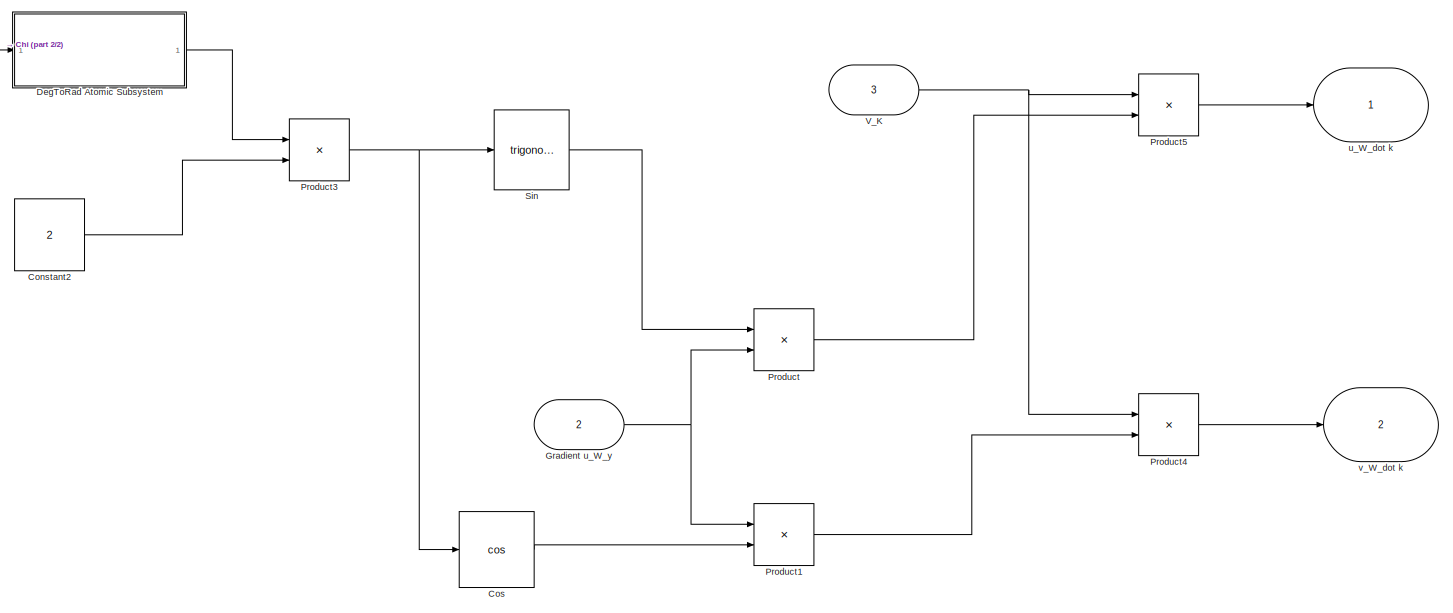
[diagram: root canvas - part 1/2, most of the canvas]
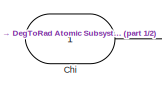
[diagram: root canvas - part 2/2, top left region]
MODEL slx_45766011ba7b
KIND model
CONFIG AbsTol = auto
CONFIG EnableMultiTasking = off
CONFIG FixedStep = auto
CONFIG MaxStep = auto
CONFIG MinStep = auto
CONFIG RelTol = 1e-3
CONFIG SampleTimeConstraint = Unconstrained
CONFIG SolverName = VariableStepAuto
CONFIG StartTime = 0.0
CONFIG StopTime = 10.0
BLOCK [Inport] Chi
BLOCK [Constant] Constant2
  Value = 2
BLOCK [Trigonometry] Cos
  Operator = cos
  Ports = [1, 1]
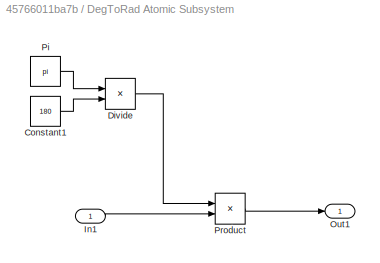
BLOCK [SubSystem] DegToRad Atomic Subsystem
  Ports = [1, 1]
  RequestExecContextInheritance = off
  TreatAsAtomicUnit = on
BLOCK [Constant] DegToRad Atomic Subsystem/Constant1
  Value = 180
BLOCK [Product] DegToRad Atomic Subsystem/Divide
  Inputs = */
  Ports = [2, 1]
BLOCK [Inport] DegToRad Atomic Subsystem/In1
BLOCK [Outport] DegToRad Atomic Subsystem/Out1
BLOCK [Constant] DegToRad Atomic Subsystem/Pi
  OutDataTypeStr = Inherit: Inherit via back propagation
  Value = pi
BLOCK [Product] DegToRad Atomic Subsystem/Product
  Ports = [2, 1]
BLOCK [Inport] Gradient u_W_y
  Port = 2
BLOCK [Product] Product
  Ports = [2, 1]
BLOCK [Product] Product1
  Ports = [2, 1]
BLOCK [Product] Product3
  Ports = [2, 1]
BLOCK [Product] Product4
  Ports = [2, 1]
BLOCK [Product] Product5
  Ports = [2, 1]
BLOCK [Trigonometry] Sin
  Ports = [1, 1]
BLOCK [Inport] V_K
  Port = 3
BLOCK [Outport] u_W_dot k
BLOCK [Outport] v_W_dot k
  Port = 2
LINE Chi:1 -> DegToRad Atomic Subsystem:1
LINE Constant2:1 -> Product3:2
LINE Cos:1 -> Product1:2
LINE DegToRad Atomic Subsystem/Constant1:1 -> DegToRad Atomic Subsystem/Divide:2
LINE DegToRad Atomic Subsystem/Divide:1 -> DegToRad Atomic Subsystem/Product:1
LINE DegToRad Atomic Subsystem/In1:1 -> DegToRad Atomic Subsystem/Product:2
LINE DegToRad Atomic Subsystem/Pi:1 -> DegToRad Atomic Subsystem/Divide:1
LINE DegToRad Atomic Subsystem/Product:1 -> DegToRad Atomic Subsystem/Out1:1
LINE DegToRad Atomic Subsystem:1 -> Product3:1
NET Gradient u_W_y:1 -> Product1:1, Product:2
LINE Product1:1 -> Product4:2
NET Product3:1 -> Cos:1, Sin:1
LINE Product4:1 -> v_W_dot k:1
LINE Product5:1 -> u_W_dot k:1
LINE Product:1 -> Product5:2
LINE Sin:1 -> Product:1
NET V_K:1 -> Product4:1, Product5:1
note: NET lines group one-source signal fan-out (src -> all destinations, sorted); 1:1 wires keep LINE
